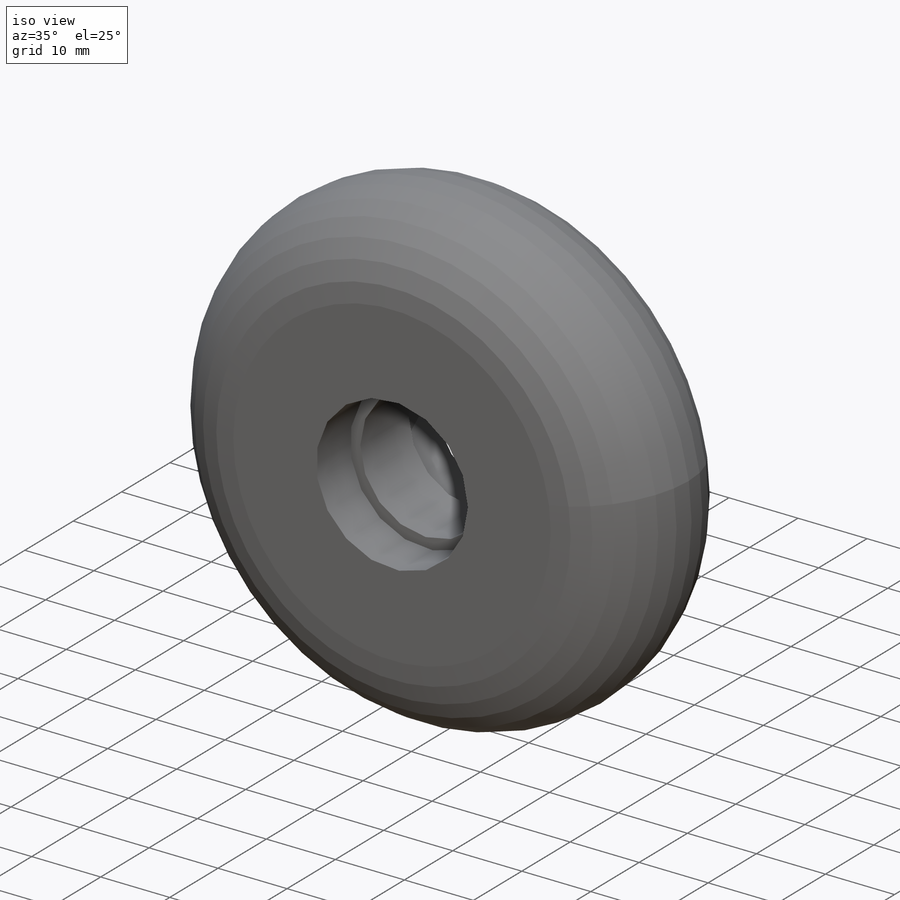
[diagram: iso view]
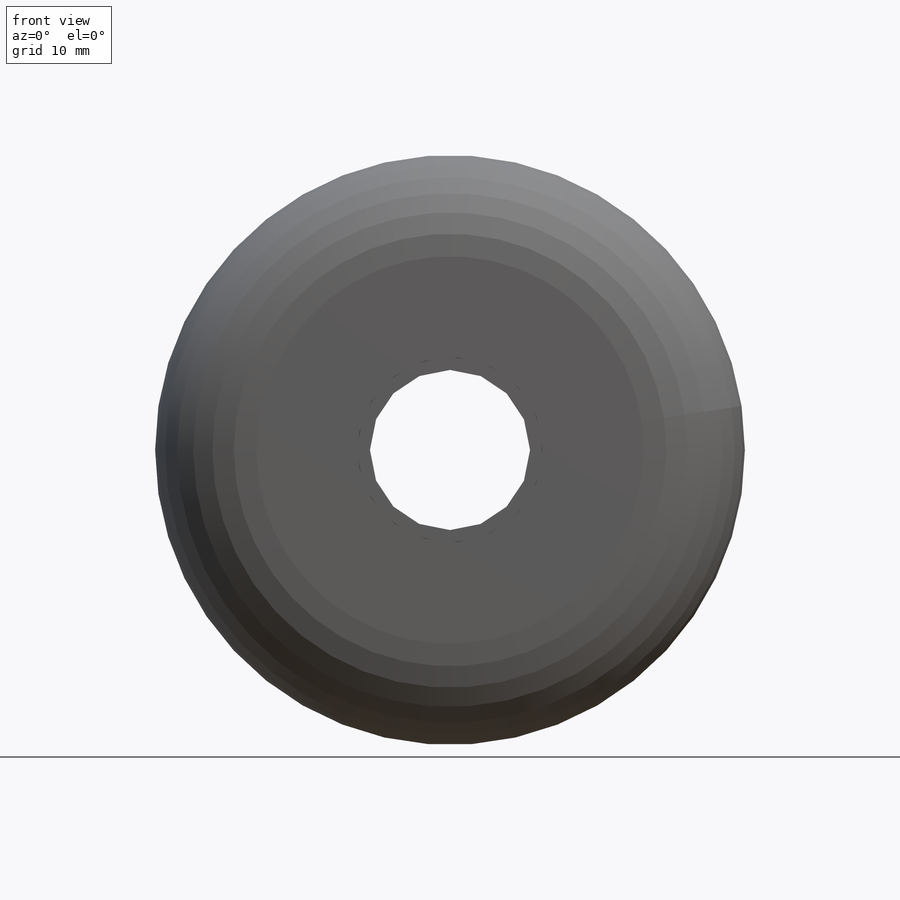
[diagram: front view]
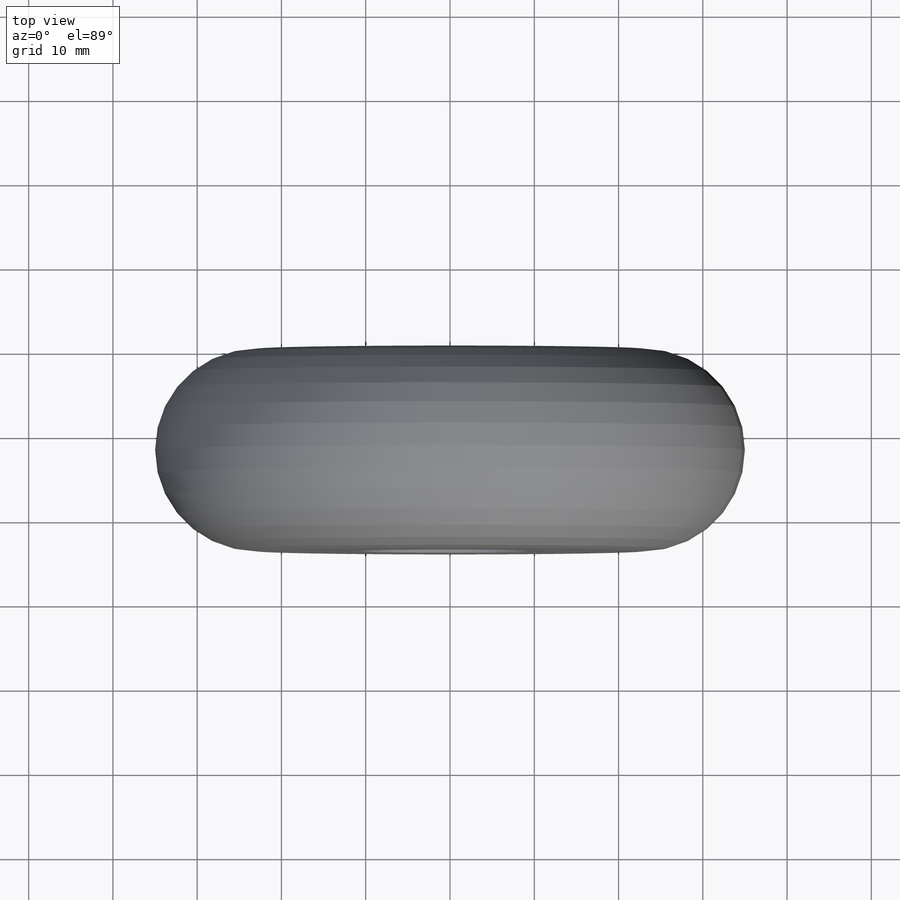
[diagram: top view]
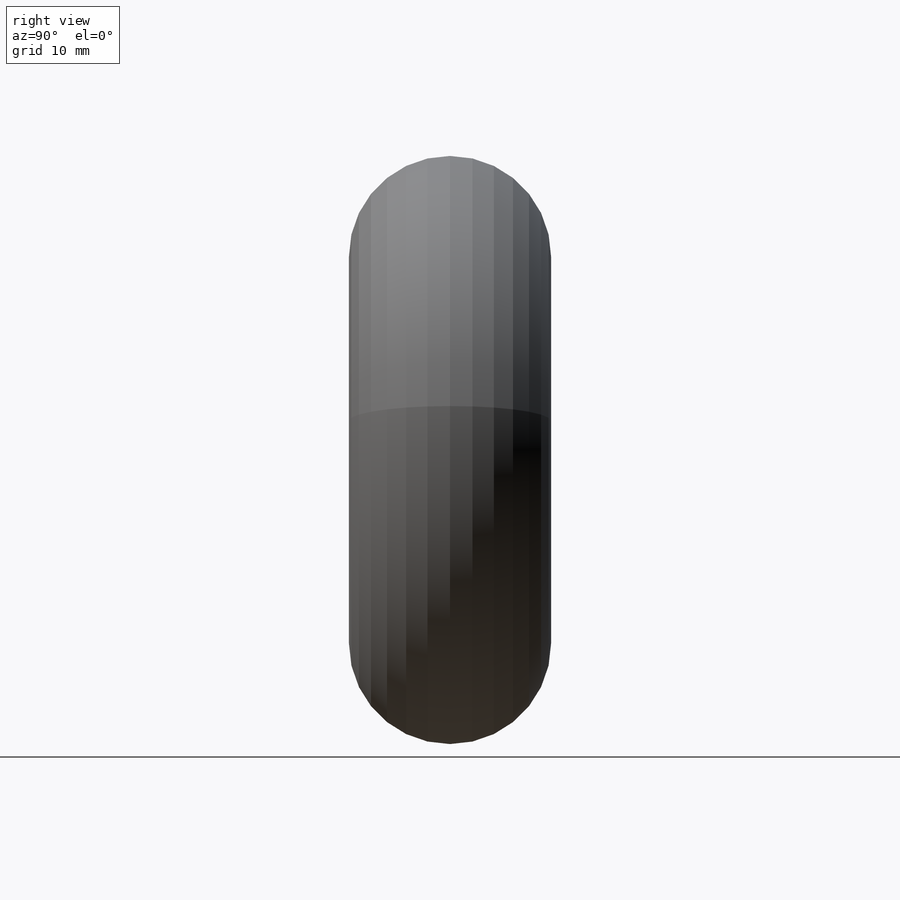
[diagram: right view]
SOLIDWORKS PART (.sldprt)
format: sldprt  version: not decoded by parser v0  size: 224,256 bytes
history: native  units: mm
features: sketch x5, plane x3, cut_extrude x3, fillet x2, material x1, extrude x1 (+9 scaffold rows collapsed)
feature tree (24):
  scaffold x9  (default folders/planes/origin — collapsed)
  material  "Material <not specified>"
  plane  "Face"
  plane  "Dessus"
  plane  "Droite"
  sketch  "Esquisse1"  dims[D1=70.0mm]
  extrude  "Extrusion1"  Depth=24mm
  fillet  "Congé1"  Radius=12mm
  fillet  "Congé2"  Radius=12mm
  sketch  "Esquisse2"  dims[D1=22.0mm D2=8.0mm]
  cut_extrude  "Enlèv. mat.-Extru.1"  Depth=7mm
  sketch  "Esquisse3"  dims[D1=22.0mm D2=8.0mm]
  cut_extrude  "Enlèv. mat.-Extru.2"  Depth=7mm
  sketch  "Esquisse5"  dims[D1=19.0mm]
  cut_extrude  "Enlèv. mat.-Extru.3"  [1 undecoded]
  sketch  "Esquisse6"  dims[c1.D1=10.0mm c2.D1=120.0deg c2.D2=10.0mm c3.D2=120.0deg]
decode coverage: 10 of 11 modeling features carry decoded parameters
note: 1 parameter value undecoded
note: suppression state not decoded; provenance and decode notes live in map.json
